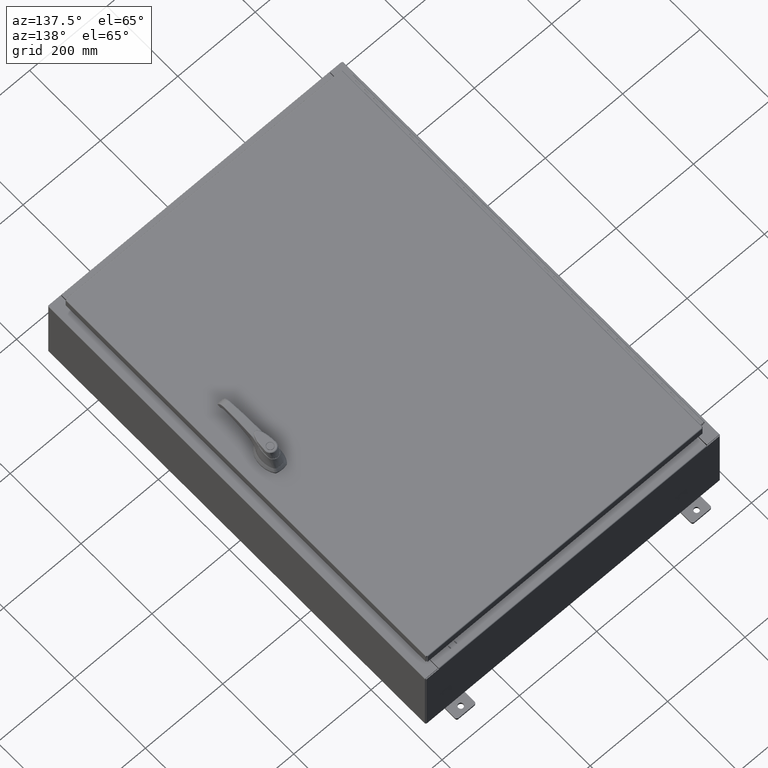
[diagram: clean part render]
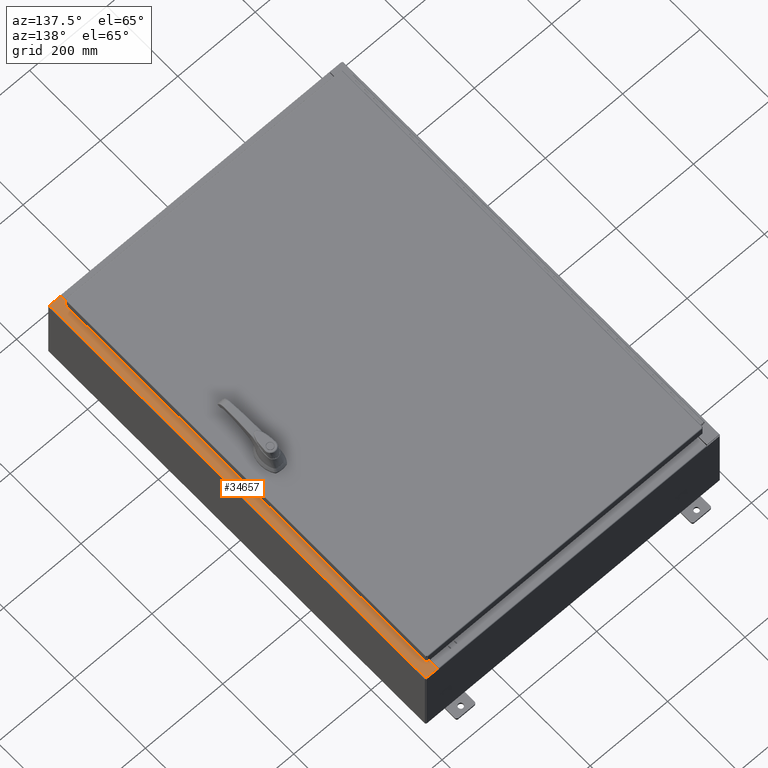
[diagram: same view with one face highlighted and labeled with its STEP entity id]
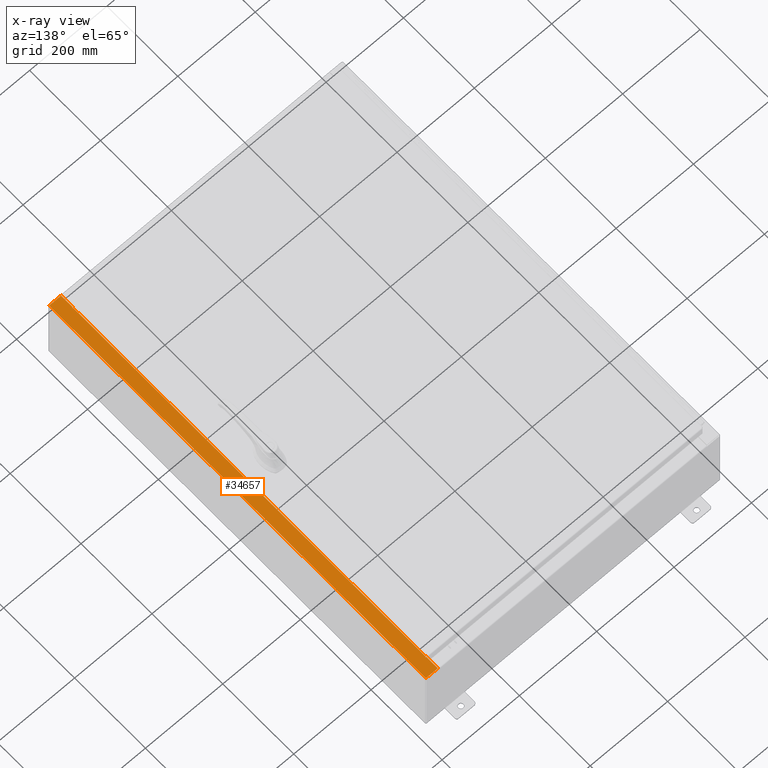
[diagram: x-ray of the same camera — body ghosted, the highlighted face saturated]
A machine part, auxiliary view. The second image highlights one B-rep face of the part: STEP entity #34657.
The next image is the same camera in x-ray: the body ghosted, the highlighted face saturated — about 0% of this face is hidden behind the body in this view.
In plain terms, the highlighted planar face has unit normal (-0, -0, -1).
Its self-contained STEP definition (entity closure, byte-faithful):
#1989 = DIRECTION ( 'NONE',  ( -1.000000000000000000, 0.0000000000000000000, 7.132762385546384700E-015 ) ) ;
#2748 = CARTESIAN_POINT ( 'NONE',  ( 13.75005000000003200, 19.63109999999998900, 7.925300000000007100 ) ) ;
#4408 = VERTEX_POINT ( 'NONE', #62582 ) ;
#4979 = LINE ( 'NONE', #122828, #54658 ) ;
#5891 = DIRECTION ( 'NONE',  ( 1.000000000000000000, 2.189528850507526700E-047, -7.132762385546384700E-015 ) ) ;
#6911 = CARTESIAN_POINT ( 'NONE',  ( 13.69970000000003200, -20.92529999999998900, 7.925300000000009800 ) ) ;
#7356 = LINE ( 'NONE', #112526, #110006 ) ;
#7784 = CARTESIAN_POINT ( 'NONE',  ( 13.71270000000003200, -19.59374999999998900, 7.925300000000009800 ) ) ;
#8283 = CARTESIAN_POINT ( 'NONE',  ( 14.91230000000003000, -20.92529999999998900, 7.925300000000000000 ) ) ;
#9887 = VERTEX_POINT ( 'NONE', #29724 ) ;
#10732 = VERTEX_POINT ( 'NONE', #84214 ) ;
#12775 = CARTESIAN_POINT ( 'NONE',  ( 13.75005000000003200, 19.63109999999998900, 7.925300000000009800 ) ) ;
#14033 = ORIENTED_EDGE ( 'NONE', *, *, #31493, .F. ) ;
#17137 = EDGE_LOOP ( 'NONE', ( #102863, #118924, #90508, #77198, #23263, #70781, #14033, #98737, #58875, #45996, #84711, #102969 ) ) ;
#19066 = EDGE_CURVE ( 'NONE', #52635, #102599, #7356, .T. ) ;
#19687 = CARTESIAN_POINT ( 'NONE',  ( 13.75005000000003200, -19.59374999999998900, 7.925300000000009800 ) ) ;
#20419 = LINE ( 'NONE', #96875, #99780 ) ;
#20886 = EDGE_CURVE ( 'NONE', #98326, #122046, #30407, .T. ) ;
#23263 = ORIENTED_EDGE ( 'NONE', *, *, #69632, .T. ) ;
#27463 = CARTESIAN_POINT ( 'NONE',  ( 14.91230000000003000, -20.92529999999998900, 7.925300000000000000 ) ) ;
#29229 = DIRECTION ( 'NONE',  ( -1.000000000000000000, 0.0000000000000000000, 0.0000000000000000000 ) ) ;
#29369 = VERTEX_POINT ( 'NONE', #2748 ) ;
#29724 = CARTESIAN_POINT ( 'NONE',  ( 14.91230000000003000, 20.92529999999998600, 7.925299999999998200 ) ) ;
#30407 = LINE ( 'NONE', #93706, #77042 ) ;
#31493 = EDGE_CURVE ( 'NONE', #29369, #77571, #36171, .T. ) ;
#31532 = CARTESIAN_POINT ( 'NONE',  ( 5.679009539018309800E-014, 2.069333763834944900E-016, 7.925300000000105700 ) ) ;
#32214 = VERTEX_POINT ( 'NONE', #6911 ) ;
#33044 = VECTOR ( 'NONE', #112253, 39.37007874015748100 ) ;
#33208 = CARTESIAN_POINT ( 'NONE',  ( 5.679009539018309200E-014, 20.92529999999999300, 7.925300000000104800 ) ) ;
#33778 = DIRECTION ( 'NONE',  ( 0.0000000000000000000, -1.000000000000000000, 2.611047864225856100E-017 ) ) ;
#34657 = ADVANCED_FACE ( 'NONE', ( #80073 ), #101156, .F. ) ;
#36171 = LINE ( 'NONE', #12775, #33044 ) ;
#37341 = VERTEX_POINT ( 'NONE', #71518 ) ;
#37436 = AXIS2_PLACEMENT_3D ( 'NONE', #113610, #54008, #123522 ) ;
#37643 = CARTESIAN_POINT ( 'NONE',  ( 13.69970000000003200, -19.63109999999999300, 7.925300000000008900 ) ) ;
#40036 = EDGE_CURVE ( 'NONE', #102599, #4408, #20419, .T. ) ;
#41181 = EDGE_CURVE ( 'NONE', #4408, #29369, #104192, .T. ) ;
#42846 = VECTOR ( 'NONE', #79919, 39.37007874015748100 ) ;
#43216 = DIRECTION ( 'NONE',  ( -1.000000000000000000, -2.189528850507526700E-047, 7.132762385546384700E-015 ) ) ;
#43593 = DIRECTION ( 'NONE',  ( 7.132762385546384700E-015, 2.611047864225855500E-017, 1.000000000000000000 ) ) ;
#45996 = ORIENTED_EDGE ( 'NONE', *, *, #19066, .F. ) ;
#52635 = VERTEX_POINT ( 'NONE', #7784 ) ;
#54008 = DIRECTION ( 'NONE',  ( 7.132762385546384700E-015, 2.611047864225855500E-017, 1.000000000000000000 ) ) ;
#54658 = VECTOR ( 'NONE', #33778, 39.37007874015748100 ) ;
#58875 = ORIENTED_EDGE ( 'NONE', *, *, #40036, .F. ) ;
#61500 = DIRECTION ( 'NONE',  ( -7.132762385546384700E-015, -2.611047864225855500E-017, -1.000000000000000000 ) ) ;
#62582 = CARTESIAN_POINT ( 'NONE',  ( 13.75005000000003200, 19.59374999999998900, 7.925300000000007100 ) ) ;
#67435 = DIRECTION ( 'NONE',  ( -0.0000000000000000000, -1.000000000000000000, 2.611047864225856100E-017 ) ) ;
#67789 = VERTEX_POINT ( 'NONE', #8283 ) ;
#69632 = EDGE_CURVE ( 'NONE', #9887, #37341, #110740, .T. ) ;
#69936 = CARTESIAN_POINT ( 'NONE',  ( 13.69970000000003200, 2.069333763834919300E-016, 7.925300000000008900 ) ) ;
#70781 = ORIENTED_EDGE ( 'NONE', *, *, #86897, .T. ) ;
#71518 = CARTESIAN_POINT ( 'NONE',  ( 13.69970000000003200, 20.92529999999998900, 7.925300000000008900 ) ) ;
#74091 = DIRECTION ( 'NONE',  ( 1.000000000000000000, 4.340572780400098900E-014, 2.170286390200049500E-014 ) ) ;
#75423 = EDGE_CURVE ( 'NONE', #122046, #10732, #110019, .T. ) ;
#76219 = CARTESIAN_POINT ( 'NONE',  ( 13.75005000000003200, -19.63109999999998900, 7.925300000000008900 ) ) ;
#77042 = VECTOR ( 'NONE', #74091, 39.37007874015748100 ) ;
#77198 = ORIENTED_EDGE ( 'NONE', *, *, #80901, .F. ) ;
#77571 = VERTEX_POINT ( 'NONE', #92081 ) ;
#79919 = DIRECTION ( 'NONE',  ( 0.0000000000000000000, -1.000000000000000000, 2.611047864225856100E-017 ) ) ;
#80073 = FACE_OUTER_BOUND ( 'NONE', #17137, .T. ) ;
#80901 = EDGE_CURVE ( 'NONE', #9887, #67789, #119755, .T. ) ;
#84214 = CARTESIAN_POINT ( 'NONE',  ( 13.75005000000003200, -19.59374999999998900, 7.925300000000007100 ) ) ;
#84711 = ORIENTED_EDGE ( 'NONE', *, *, #113731, .F. ) ;
#86897 = EDGE_CURVE ( 'NONE', #37341, #77571, #122129, .T. ) ;
#90508 = ORIENTED_EDGE ( 'NONE', *, *, #120807, .T. ) ;
#90651 = EDGE_CURVE ( 'NONE', #98326, #32214, #4979, .T. ) ;
#92081 = CARTESIAN_POINT ( 'NONE',  ( 13.69970000000003200, 19.63109999999998600, 7.925300000000008900 ) ) ;
#92979 = DIRECTION ( 'NONE',  ( -0.0000000000000000000, 1.000000000000000000, -0.0000000000000000000 ) ) ;
#93361 = VECTOR ( 'NONE', #67435, 39.37007874015748100 ) ;
#93706 = CARTESIAN_POINT ( 'NONE',  ( 13.69970000000003200, -19.63109999999999300, 7.925300000000008900 ) ) ;
#95863 = LINE ( 'NONE', #19687, #116000 ) ;
#96875 = CARTESIAN_POINT ( 'NONE',  ( 13.71270000000003200, 19.59374999999998900, 7.925300000000009800 ) ) ;
#98326 = VERTEX_POINT ( 'NONE', #37643 ) ;
#98737 = ORIENTED_EDGE ( 'NONE', *, *, #41181, .F. ) ;
#99780 = VECTOR ( 'NONE', #116795, 39.37007874015748100 ) ;
#101156 = PLANE ( 'NONE',  #114340 ) ;
#102599 = VERTEX_POINT ( 'NONE', #109235 ) ;
#102863 = ORIENTED_EDGE ( 'NONE', *, *, #20886, .F. ) ;
#102969 = ORIENTED_EDGE ( 'NONE', *, *, #75423, .F. ) ;
#103192 = CARTESIAN_POINT ( 'NONE',  ( 13.75005000000003200, 19.61242499999999100, 7.925300000000009800 ) ) ;
#104192 = CIRCLE ( 'NONE', #117176, 0.01867499999999949400 ) ;
#107629 = VECTOR ( 'NONE', #43216, 39.37007874015748100 ) ;
#109235 = CARTESIAN_POINT ( 'NONE',  ( 13.71270000000003200, 19.59374999999998900, 7.925300000000009800 ) ) ;
#110006 = VECTOR ( 'NONE', #92979, 39.37007874015748100 ) ;
#110019 = CIRCLE ( 'NONE', #37436, 0.01867499999999949400 ) ;
#110363 = VECTOR ( 'NONE', #5891, 39.37007874015748100 ) ;
#110740 = LINE ( 'NONE', #33208, #107629 ) ;
#112253 = DIRECTION ( 'NONE',  ( -1.000000000000000000, 4.340572780400098900E-014, -2.170286390200049500E-014 ) ) ;
#112526 = CARTESIAN_POINT ( 'NONE',  ( 13.71270000000003200, -19.59374999999998900, 7.925300000000009800 ) ) ;
#113126 = DIRECTION ( 'NONE',  ( 1.000000000000000000, 0.0000000000000000000, 0.0000000000000000000 ) ) ;
#113414 = LINE ( 'NONE', #124885, #110363 ) ;
#113610 = CARTESIAN_POINT ( 'NONE',  ( 13.75005000000003200, -19.61242499999999100, 7.925300000000009800 ) ) ;
#113731 = EDGE_CURVE ( 'NONE', #10732, #52635, #95863, .T. ) ;
#114340 = AXIS2_PLACEMENT_3D ( 'NONE', #31532, #61500, #1989 ) ;
#116000 = VECTOR ( 'NONE', #29229, 39.37007874015748100 ) ;
#116795 = DIRECTION ( 'NONE',  ( 1.000000000000000000, 0.0000000000000000000, 0.0000000000000000000 ) ) ;
#117176 = AXIS2_PLACEMENT_3D ( 'NONE', #103192, #43593, #113126 ) ;
#118924 = ORIENTED_EDGE ( 'NONE', *, *, #90651, .T. ) ;
#119755 = LINE ( 'NONE', #27463, #93361 ) ;
#120807 = EDGE_CURVE ( 'NONE', #32214, #67789, #113414, .T. ) ;
#122046 = VERTEX_POINT ( 'NONE', #76219 ) ;
#122129 = LINE ( 'NONE', #69936, #42846 ) ;
#122828 = CARTESIAN_POINT ( 'NONE',  ( 13.69970000000003200, 2.069333763834919300E-016, 7.925300000000008900 ) ) ;
#123522 = DIRECTION ( 'NONE',  ( 1.000000000000000000, 0.0000000000000000000, 0.0000000000000000000 ) ) ;
#124885 = CARTESIAN_POINT ( 'NONE',  ( 5.679009539018310400E-014, -20.92529999999998900, 7.925300000000106600 ) ) ;